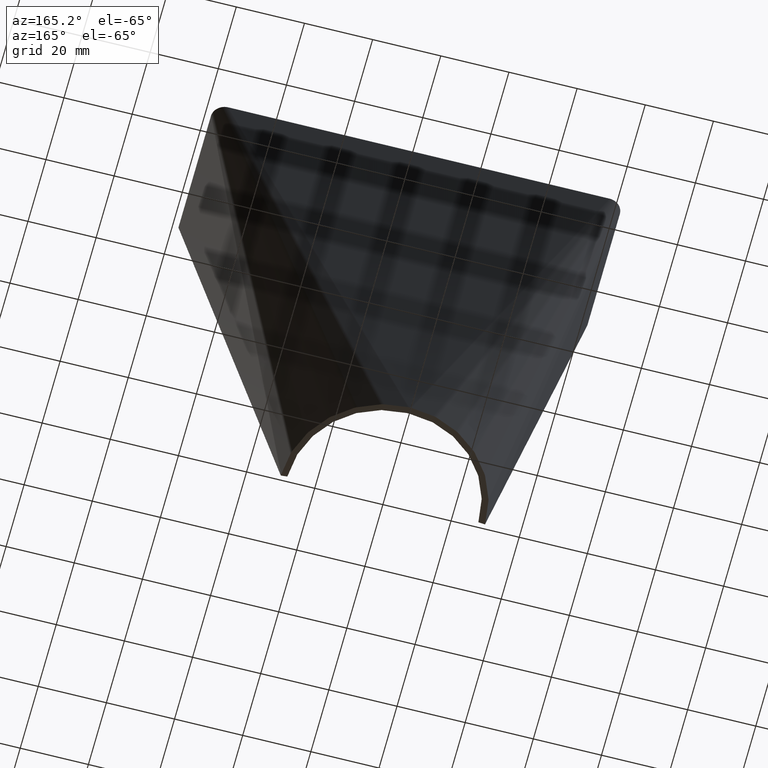
[diagram: clean part render]
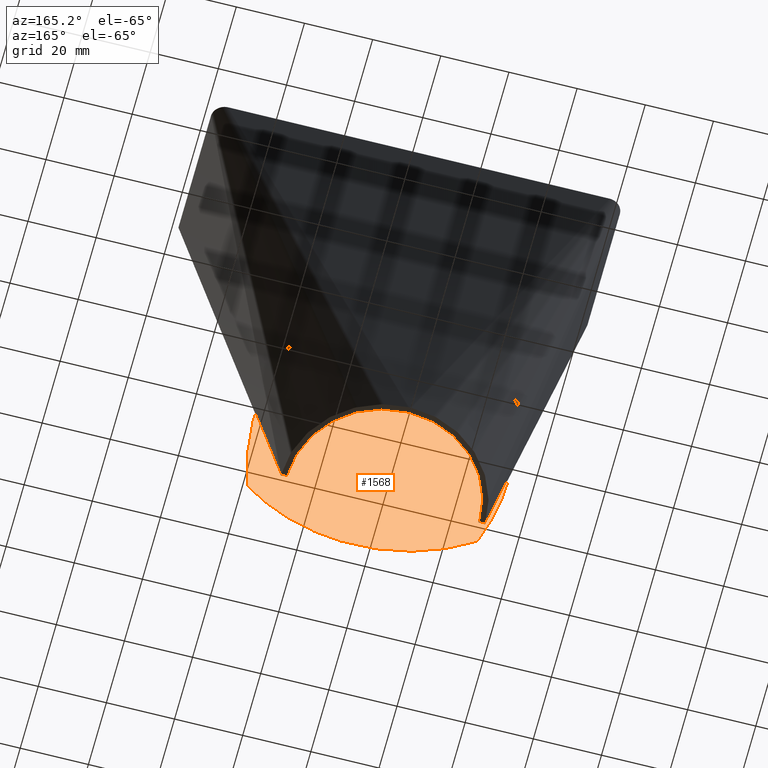
[diagram: same view with one face highlighted and labeled with its STEP entity id]
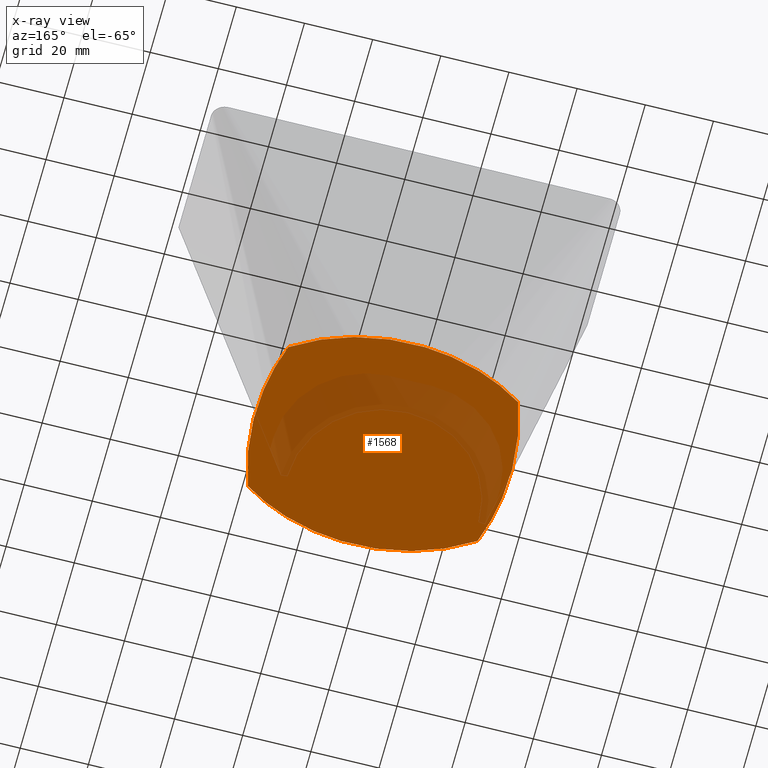
[diagram: x-ray of the same camera — body ghosted, the highlighted face saturated]
A machine part, auxiliary view. The second image highlights one B-rep face of the part: STEP entity #1568.
The next image is the same camera in x-ray: the body ghosted, the highlighted face saturated — about 23% of this face is hidden behind the body in this view.
In plain terms, the highlighted planar face has unit normal (0, 0, 1).
Its self-contained STEP definition (entity closure, byte-faithful):
#35=B_SPLINE_CURVE_WITH_KNOTS($,3,(#3020,#3021,#3022,#3023,#3024,#3025,
#3026,#3027,#3028,#3029),.UNSPECIFIED.,.F.,.F.,(4,2,2,2,4),(0.,2.22425967459504,
4.65938328631115,5.92002461749209,7.11402905425306),.UNSPECIFIED.);
#36=B_SPLINE_CURVE_WITH_KNOTS($,3,(#3031,#3032,#3033,#3034,#3035,#3036),
 .UNSPECIFIED.,.F.,.F.,(4,2,4),(0.,2.28923318721004,4.57846637442008),
 .UNSPECIFIED.);
#37=B_SPLINE_CURVE_WITH_KNOTS($,3,(#3038,#3039,#3040,#3041,#3042,#3043,
#3044,#3045,#3046,#3047),.UNSPECIFIED.,.F.,.F.,(4,2,2,2,4),(0.,2.22425967459503,
4.65938328631114,5.92002461749207,7.114029054253),.UNSPECIFIED.);
#38=B_SPLINE_CURVE_WITH_KNOTS($,3,(#3048,#3049,#3050,#3051,#3052,#3053),
 .UNSPECIFIED.,.F.,.F.,(4,2,4),(0.,2.28923318721004,4.57846637442008),
 .UNSPECIFIED.);
#269=FACE_OUTER_BOUND($,#378,.T.);
#378=EDGE_LOOP($,(#1403,#1404,#1405,#1406));
#779=VERTEX_POINT($,#3018);
#780=VERTEX_POINT($,#3019);
#781=VERTEX_POINT($,#3030);
#782=VERTEX_POINT($,#3037);
#991=EDGE_CURVE($,#779,#780,#35,.T.);
#992=EDGE_CURVE($,#780,#781,#36,.T.);
#993=EDGE_CURVE($,#781,#782,#37,.T.);
#994=EDGE_CURVE($,#782,#779,#38,.T.);
#1403=ORIENTED_EDGE($,*,*,#991,.T.);
#1404=ORIENTED_EDGE($,*,*,#992,.T.);
#1405=ORIENTED_EDGE($,*,*,#993,.T.);
#1406=ORIENTED_EDGE($,*,*,#994,.T.);
#1459=PLANE($,#1708);
#1568=ADVANCED_FACE($,(#269),#1459,.T.);
#1708=AXIS2_PLACEMENT_3D($,#3017,#2128,#2129);
#2128=DIRECTION('center_axis',(0.,0.,1.));
#2129=DIRECTION('ref_axis',(1.,0.,0.));
#3017=CARTESIAN_POINT('Origin',(0.,-1.73598509305024E-015,-112.5));
#3018=CARTESIAN_POINT('',(33.7211316226015,22.4807544150677,-112.5));
#3019=CARTESIAN_POINT('',(-33.7211316226015,22.4807544150677,-112.5));
#3020=CARTESIAN_POINT('Ctrl Pts',(33.7211316226015,22.4807544150677,-112.5));
#3021=CARTESIAN_POINT('Ctrl Pts',(27.5753032501992,26.6279389025073,-112.5));
#3022=CARTESIAN_POINT('Ctrl Pts',(20.5789055339016,29.5104380411886,-112.5));
#3023=CARTESIAN_POINT('Ctrl Pts',(5.33351513243449,32.8059846882316,-112.5));
#3024=CARTESIAN_POINT('Ctrl Pts',(-2.96380264608446,32.9578103598292,-112.5));
#3025=CARTESIAN_POINT('Ctrl Pts',(-15.1487849839177,30.8017861833061,-112.5));
#3026=CARTESIAN_POINT('Ctrl Pts',(-19.2305117252443,29.6454048295566,-112.5));
#3027=CARTESIAN_POINT('Ctrl Pts',(-26.8521985870543,26.5805662565134,-112.5));
#3028=CARTESIAN_POINT('Ctrl Pts',(-30.4118892726623,24.7138201154497,-112.5));
#3029=CARTESIAN_POINT('Ctrl Pts',(-33.7211316226015,22.4807544150677,-112.5));
#3030=CARTESIAN_POINT('',(-33.7211316226015,-22.4807544150677,-112.5));
#3031=CARTESIAN_POINT('Ctrl Pts',(-33.7211316226015,22.4807544150677,-112.5));
#3032=CARTESIAN_POINT('Ctrl Pts',(-36.2376513007147,15.2768741571835,-112.5));
#3033=CARTESIAN_POINT('Ctrl Pts',(-37.5,7.64053616637063,-112.5));
#3034=CARTESIAN_POINT('Ctrl Pts',(-37.5,-7.64053616637064,-112.5));
#3035=CARTESIAN_POINT('Ctrl Pts',(-36.2376513007147,-15.2768741571835,-112.5));
#3036=CARTESIAN_POINT('Ctrl Pts',(-33.7211316226015,-22.4807544150677,-112.5));
#3037=CARTESIAN_POINT('',(33.7211316226015,-22.4807544150676,-112.5));
#3038=CARTESIAN_POINT('Ctrl Pts',(-33.7211316226015,-22.4807544150677,-112.5));
#3039=CARTESIAN_POINT('Ctrl Pts',(-27.5753032501992,-26.6279389025073,-112.5));
#3040=CARTESIAN_POINT('Ctrl Pts',(-20.5789055339016,-29.5104380411886,-112.5));
#3041=CARTESIAN_POINT('Ctrl Pts',(-5.3335151324345,-32.8059846882316,-112.5));
#3042=CARTESIAN_POINT('Ctrl Pts',(2.96380264608447,-32.9578103598292,-112.5));
#3043=CARTESIAN_POINT('Ctrl Pts',(15.1487849839176,-30.8017861833061,-112.5));
#3044=CARTESIAN_POINT('Ctrl Pts',(19.2305117252442,-29.6454048295567,-112.5));
#3045=CARTESIAN_POINT('Ctrl Pts',(26.8521985870542,-26.5805662565134,-112.5));
#3046=CARTESIAN_POINT('Ctrl Pts',(30.4118892726622,-24.7138201154497,-112.5));
#3047=CARTESIAN_POINT('Ctrl Pts',(33.7211316226015,-22.4807544150676,-112.5));
#3048=CARTESIAN_POINT('Ctrl Pts',(33.7211316226015,-22.4807544150676,-112.5));
#3049=CARTESIAN_POINT('Ctrl Pts',(36.2376513007147,-15.2768741571834,-112.5));
#3050=CARTESIAN_POINT('Ctrl Pts',(37.5,-7.64053616637061,-112.5));
#3051=CARTESIAN_POINT('Ctrl Pts',(37.5,7.64053616637064,-112.5));
#3052=CARTESIAN_POINT('Ctrl Pts',(36.2376513007147,15.2768741571835,-112.5));
#3053=CARTESIAN_POINT('Ctrl Pts',(33.7211316226015,22.4807544150677,-112.5));